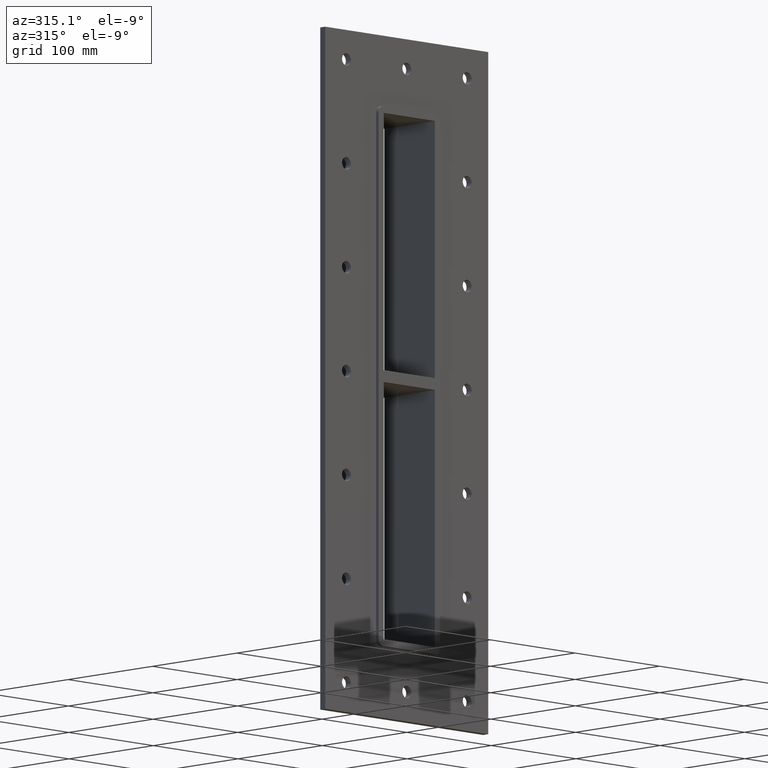
[diagram: clean part render]
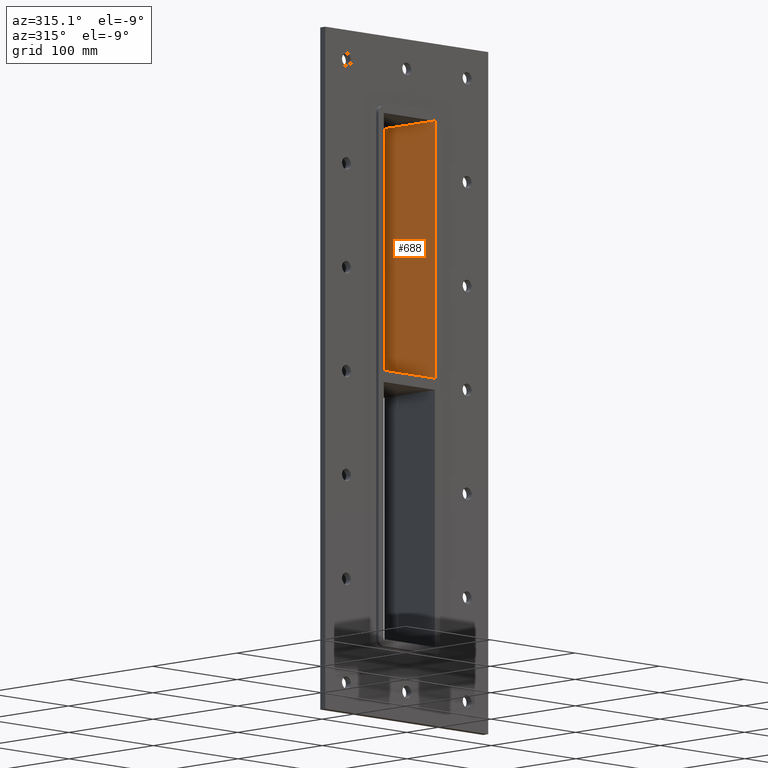
[diagram: same view with one face highlighted and labeled with its STEP entity id]
A machine part, auxiliary view. The second image highlights one B-rep face of the part: STEP entity #688.
In plain terms, the highlighted planar face has unit normal (1, 0, 0).
Its self-contained STEP definition (entity closure, byte-faithful):
#563=CARTESIAN_POINT('',(30.249999999999908,-3.0,5.0));
#564=VERTEX_POINT('',#563);
#571=CARTESIAN_POINT('',(30.249999999999901,57.0,5.0));
#572=VERTEX_POINT('',#571);
#573=CARTESIAN_POINT('',(30.25,57.000000000000007,5.0));
#574=DIRECTION('',(0.0,-1.0,0.0));
#575=VECTOR('',#574,60.000000000000007);
#576=LINE('',#573,#575);
#577=EDGE_CURVE('',#572,#564,#576,.T.);
#658=CARTESIAN_POINT('',(30.25,0.0,223.00000000000006));
#659=DIRECTION('',(1.0,0.0,0.0));
#660=DIRECTION('',(0.0,0.0,-1.0));
#661=AXIS2_PLACEMENT_3D('',#658,#659,#660);
#662=PLANE('',#661);
#663=ORIENTED_EDGE('',*,*,#577,.T.);
#664=CARTESIAN_POINT('',(30.25,-3.0,223.00000000000006));
#665=VERTEX_POINT('',#664);
#666=CARTESIAN_POINT('',(30.25,-3.0,223.00000000000006));
#667=DIRECTION('',(0.0,0.0,-1.0));
#668=VECTOR('',#667,218.00000000000006);
#669=LINE('',#666,#668);
#670=EDGE_CURVE('',#665,#564,#669,.T.);
#671=ORIENTED_EDGE('',*,*,#670,.F.);
#672=CARTESIAN_POINT('',(30.25,57.0,223.00000000000006));
#673=VERTEX_POINT('',#672);
#674=CARTESIAN_POINT('',(30.25,-3.0,223.00000000000006));
#675=DIRECTION('',(0.0,1.0,0.0));
#676=VECTOR('',#675,60.0);
#677=LINE('',#674,#676);
#678=EDGE_CURVE('',#665,#673,#677,.T.);
#679=ORIENTED_EDGE('',*,*,#678,.T.);
#680=CARTESIAN_POINT('',(30.25,57.0,5.0));
#681=DIRECTION('',(0.0,0.0,1.0));
#682=VECTOR('',#681,218.00000000000006);
#683=LINE('',#680,#682);
#684=EDGE_CURVE('',#572,#673,#683,.T.);
#685=ORIENTED_EDGE('',*,*,#684,.F.);
#686=EDGE_LOOP('',(#663,#671,#679,#685));
#687=FACE_OUTER_BOUND('',#686,.T.);
#688=ADVANCED_FACE('',(#687),#662,.F.);